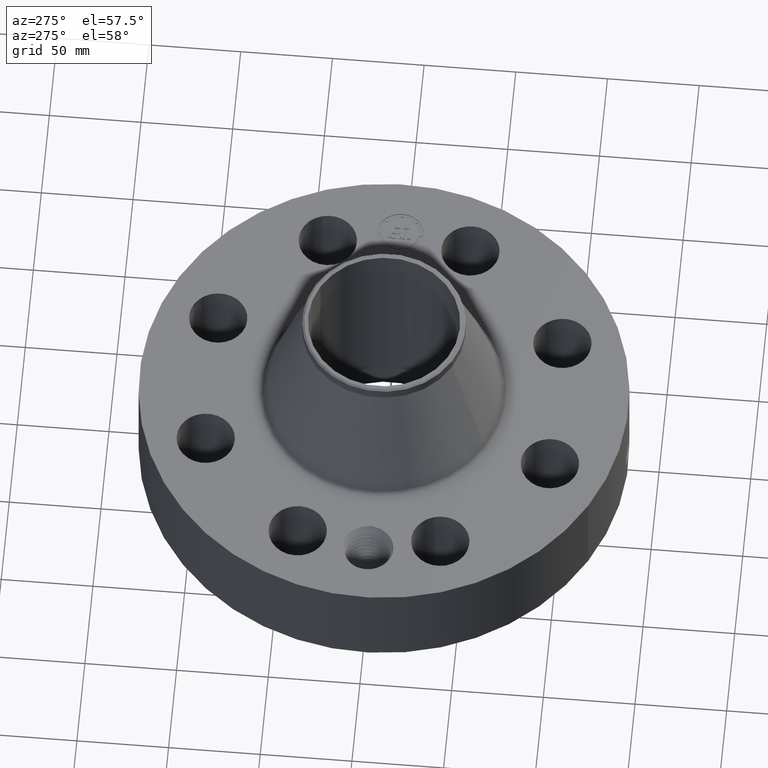
[diagram: clean part render]
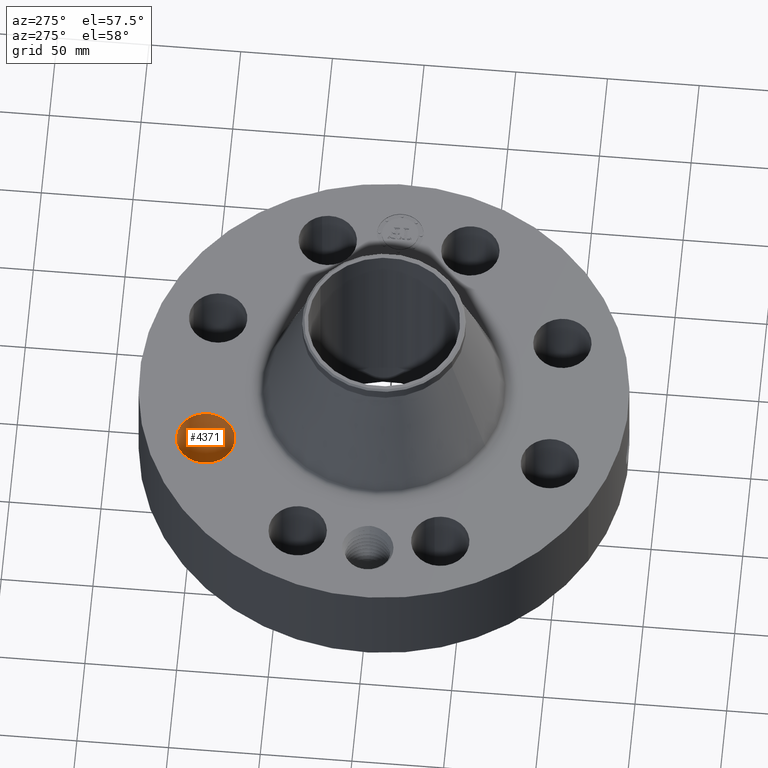
[diagram: same view with one face highlighted and labeled with its STEP entity id]
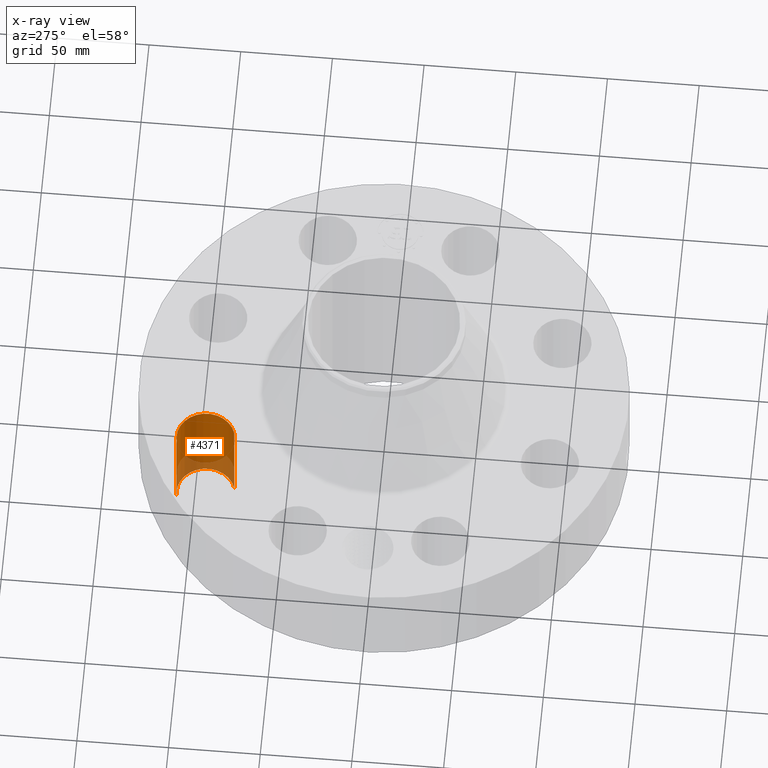
[diagram: x-ray of the same camera — body ghosted, the highlighted face saturated]
A machine part, auxiliary view. The second image highlights one B-rep face of the part: STEP entity #4371.
The next image is the same camera in x-ray: the body ghosted, the highlighted face saturated — about 24% of this face is hidden behind the body in this view.
In plain terms, the highlighted cylindrical surface (edge-blend (fillet) strip) has radius 15.875 mm, axis along (0, 0, -1).
Its self-contained STEP definition (entity closure, byte-faithful):
#3084=AXIS2_PLACEMENT_3D('Circle Axis2P3D',#3082,#3083,$) ;
#4332=AXIS2_PLACEMENT_3D('Cylinder Axis2P3D',#4329,#4330,#4331) ;
#4362=AXIS2_PLACEMENT_3D('Circle Axis2P3D',#4360,#4361,$) ;
#3082=CARTESIAN_POINT('Axis2P3D Location',(-1.53073372947,3.69551813006,2.19200000001)) ;
#3086=CARTESIAN_POINT('Vertex',(-1.70669593643,4.2952366488,2.19200000001)) ;
#3088=CARTESIAN_POINT('Vertex',(-1.3547715225,3.09579961132,2.19200000001)) ;
#4329=CARTESIAN_POINT('Axis2P3D Location',(-1.53073372947,3.69551813006,2.18806299213)) ;
#4334=CARTESIAN_POINT('Line Origine',(-1.3547715225,3.09579961132,1.096)) ;
#4338=CARTESIAN_POINT('Vertex',(-1.3547715225,3.09579961132,0.)) ;
#4345=CARTESIAN_POINT('Vertex',(-1.70669593643,4.2952366488,0.)) ;
#4348=CARTESIAN_POINT('Line Origine',(-1.70669593643,4.2952366488,1.096)) ;
#4360=CARTESIAN_POINT('Axis2P3D Location',(-1.53073372947,3.69551813006,0.)) ;
#3083=DIRECTION('Axis2P3D Direction',(0.,0.,-0.0393700787402)) ;
#4330=DIRECTION('Axis2P3D Direction',(0.,0.,-0.0393700787402)) ;
#4331=DIRECTION('Axis2P3D XDirection',(-0.0110842335096,0.0377775444876,0.)) ;
#4335=DIRECTION('Vector Direction',(0.,0.,-0.0393700787402)) ;
#4349=DIRECTION('Vector Direction',(0.,0.,-0.0393700787402)) ;
#4361=DIRECTION('Axis2P3D Direction',(0.,0.,-0.0393700787402)) ;
#4336=VECTOR('Line Direction',#4335,0.0393700787402) ;
#4350=VECTOR('Line Direction',#4349,0.0393700787402) ;
#4366=ORIENTED_EDGE('',*,*,#4352,.F.) ;
#4367=ORIENTED_EDGE('',*,*,#4364,.T.) ;
#4368=ORIENTED_EDGE('',*,*,#4340,.T.) ;
#4369=ORIENTED_EDGE('',*,*,#3090,.F.) ;
#4371=ADVANCED_FACE('PartBody',(#4370),#4333,.F.) ;
#3085=CIRCLE('generated circle',#3084,0.625000000003) ;
#4363=CIRCLE('generated circle',#4362,0.625000000003) ;
#4333=CYLINDRICAL_SURFACE('generated cylinder',#4332,0.625000000003) ;
#3090=EDGE_CURVE('',#3087,#3089,#3085,.T.) ;
#4340=EDGE_CURVE('',#4339,#3089,#4337,.F.) ;
#4352=EDGE_CURVE('',#4346,#3087,#4351,.F.) ;
#4364=EDGE_CURVE('',#4346,#4339,#4363,.T.) ;
#4365=EDGE_LOOP('',(#4366,#4367,#4368,#4369)) ;
#4370=FACE_OUTER_BOUND('',#4365,.T.) ;
#4337=LINE('Line',#4334,#4336) ;
#4351=LINE('Line',#4348,#4350) ;
#3087=VERTEX_POINT('',#3086) ;
#3089=VERTEX_POINT('',#3088) ;
#4339=VERTEX_POINT('',#4338) ;
#4346=VERTEX_POINT('',#4345) ;